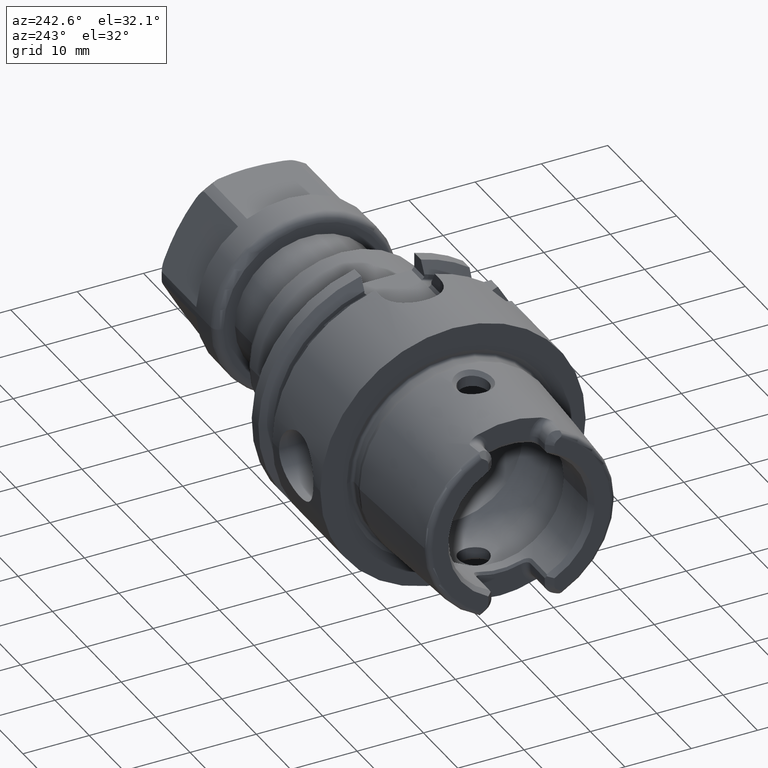
[diagram: clean part render]
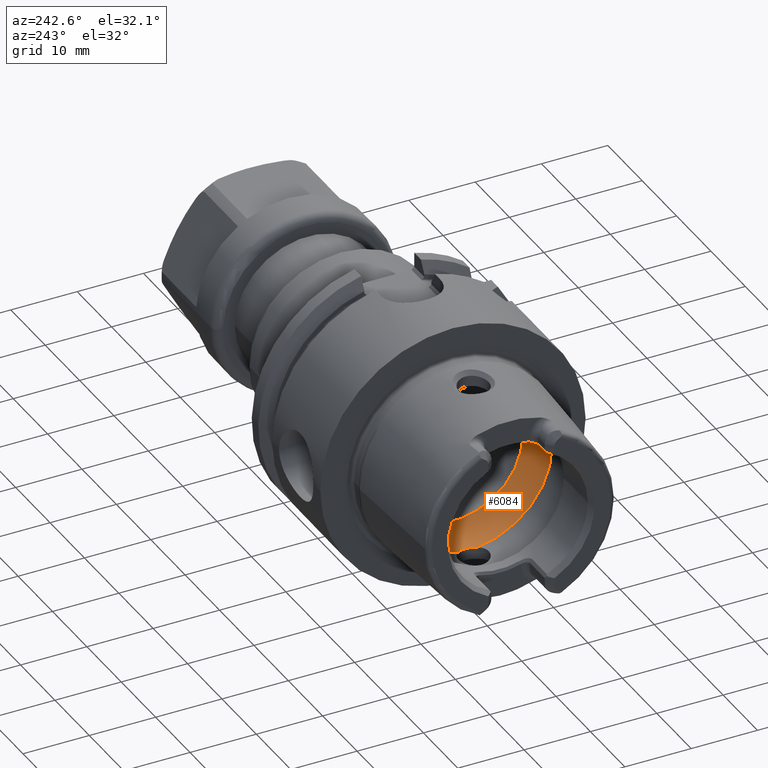
[diagram: same view with one face highlighted and labeled with its STEP entity id]
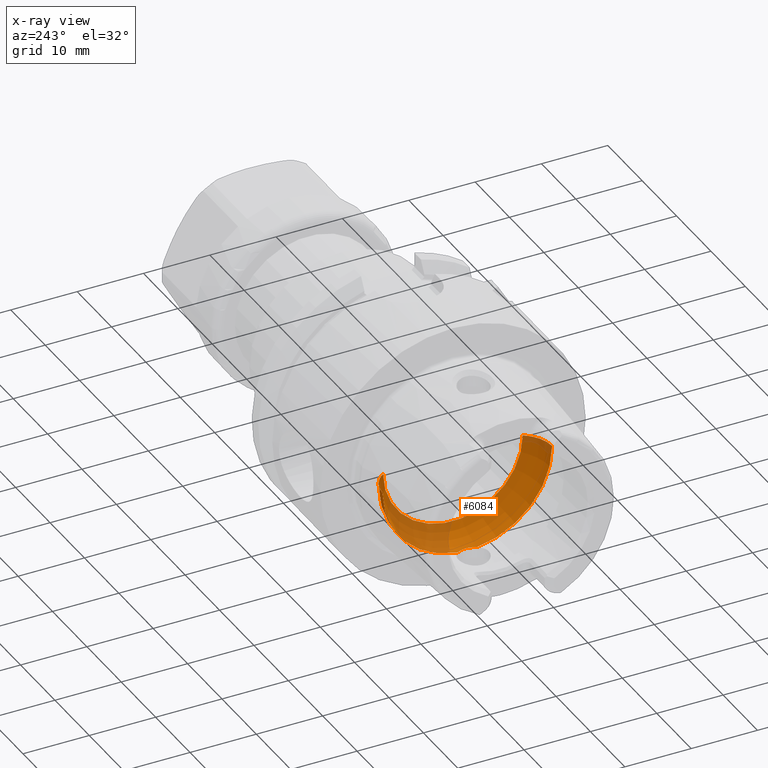
[diagram: x-ray of the same camera — body ghosted, the highlighted face saturated]
A machine part, auxiliary view. The second image highlights one B-rep face of the part: STEP entity #6084.
The next image is the same camera in x-ray: the body ghosted, the highlighted face saturated — about 28% of this face is hidden behind the body in this view.
In plain terms, the highlighted toroidal blend (fillet) surface has major radius 7.7825 mm and minor (blend) radius 5 mm.
Its self-contained STEP definition (entity closure, byte-faithful):
#2299=CARTESIAN_POINT('',(-4.183373967266E0,0.E0,0.E0));
#2300=DIRECTION('',(-1.E0,0.E0,0.E0));
#2301=DIRECTION('',(0.E0,-1.103561485873E-1,-9.938921070564E-1));
#2302=AXIS2_PLACEMENT_3D('',#2299,#2300,#2301);
#2312=CARTESIAN_POINT('',(-4.183373967266E0,0.E0,0.E0));
#2313=DIRECTION('',(-1.E0,0.E0,0.E0));
#2314=DIRECTION('',(0.E0,1.E0,0.E0));
#2315=AXIS2_PLACEMENT_3D('',#2312,#2313,#2314);
#2317=CARTESIAN_POINT('',(-4.183373967266E0,1.410627469318E0,
-1.270442585845E1));
#2318=CARTESIAN_POINT('',(-4.123340228351E0,1.333315170126E0,
-1.271301017813E1));
#2319=CARTESIAN_POINT('',(-4.011233626779E0,1.168828567969E0,
-1.272769945175E1));
#2320=CARTESIAN_POINT('',(-3.871419183696E0,8.897264968603E-1,
-1.274330535283E1));
#2321=CARTESIAN_POINT('',(-3.771256576186E0,5.958381993302E-1,
-1.275296596624E1));
#2322=CARTESIAN_POINT('',(-3.711794717934E0,2.912131748879E-1,
-1.275811647836E1));
#2323=CARTESIAN_POINT('',(-3.7E0,9.581216354732E-2,-1.275908011166E1));
#2324=CARTESIAN_POINT('',(-3.7E0,0.E0,-1.275908011166E1));
#2326=CARTESIAN_POINT('',(-4.183373967266E0,7.7825E0,0.E0));
#2327=DIRECTION('',(0.E0,0.E0,1.E0));
#2328=DIRECTION('',(8.366747934532E-1,5.477E-1,0.E0));
#2329=AXIS2_PLACEMENT_3D('',#2326,#2327,#2328);
#2331=CARTESIAN_POINT('',(0.E0,0.E0,0.E0));
#2332=DIRECTION('',(-1.E0,0.E0,0.E0));
#2333=DIRECTION('',(0.E0,1.E0,0.E0));
#2334=AXIS2_PLACEMENT_3D('',#2331,#2332,#2333);
#2336=CARTESIAN_POINT('',(-4.183373967266E0,-7.7825E0,0.E0));
#2337=DIRECTION('',(0.E0,0.E0,-1.E0));
#2338=DIRECTION('',(8.366747934532E-1,-5.477E-1,0.E0));
#2339=AXIS2_PLACEMENT_3D('',#2336,#2337,#2338);
#2341=CARTESIAN_POINT('',(-3.7E0,0.E0,-1.275908011166E1));
#2342=CARTESIAN_POINT('',(-3.7E0,-1.193651577433E-1,-1.275908011166E1));
#2343=CARTESIAN_POINT('',(-3.718312330619E0,-3.638312384164E-1,
-1.275759519499E1));
#2344=CARTESIAN_POINT('',(-3.812037405700E0,-7.453103324477E-1,
-1.274931375244E1));
#2345=CARTESIAN_POINT('',(-3.970887227848E0,-1.105450276124E0,
-1.273270949203E1));
#2346=CARTESIAN_POINT('',(-4.108323455554E0,-1.313976357446E0,
-1.271515745033E1));
#2347=CARTESIAN_POINT('',(-4.183373967266E0,-1.410627469318E0,
-1.270442585845E1));
#3139=CARTESIAN_POINT('',(-3.7E0,0.E0,-1.275908011166E1));
#3140=VERTEX_POINT('',#3139);
#3153=CARTESIAN_POINT('',(0.E0,1.0521E1,0.E0));
#3154=VERTEX_POINT('',#3153);
#3155=CARTESIAN_POINT('',(-4.183373967266E0,1.27825E1,0.E0));
#3156=VERTEX_POINT('',#3155);
#3165=CARTESIAN_POINT('',(0.E0,-1.0521E1,0.E0));
#3166=VERTEX_POINT('',#3165);
#3167=CARTESIAN_POINT('',(-4.183373967266E0,-1.27825E1,0.E0));
#3168=VERTEX_POINT('',#3167);
#3187=VERTEX_POINT('',#2317);
#3188=VERTEX_POINT('',#2347);
#6069=CARTESIAN_POINT('',(-4.183373967266E0,0.E0,0.E0));
#6070=DIRECTION('',(1.E0,0.E0,0.E0));
#6071=DIRECTION('',(0.E0,-1.E0,0.E0));
#6072=AXIS2_PLACEMENT_3D('',#6069,#6070,#6071);
#6073=TOROIDAL_SURFACE('',#6072,7.7825E0,5.E0);
#6074=ORIENTED_EDGE('',*,*,#6007,.F.);
#6075=ORIENTED_EDGE('',*,*,#6064,.F.);
#6076=ORIENTED_EDGE('',*,*,#6026,.F.);
#6078=ORIENTED_EDGE('',*,*,#6077,.T.);
#6079=ORIENTED_EDGE('',*,*,#6022,.T.);
#6080=ORIENTED_EDGE('',*,*,#6058,.F.);
#6081=ORIENTED_EDGE('',*,*,#5795,.F.);
#6082=EDGE_LOOP('',(#6074,#6075,#6076,#6078,#6079,#6080,#6081));
#6083=FACE_OUTER_BOUND('',#6082,.F.);
#6084=ADVANCED_FACE('',(#6083),#6073,.F.);
#2303=CIRCLE('',#2302,1.27825E1);
#2316=CIRCLE('',#2315,1.27825E1);
#2325=B_SPLINE_CURVE_WITH_KNOTS('',3,(#2317,#2318,#2319,#2320,#2321,#2322,#2323,
#2324),.UNSPECIFIED.,.F.,.F.,(4,1,1,1,1,4),(0.E0,2.E-1,4.E-1,6.E-1,8.E-1,1.E0),
.UNSPECIFIED.);
#2330=CIRCLE('',#2329,5.E0);
#2335=CIRCLE('',#2334,1.0521E1);
#2340=CIRCLE('',#2339,5.E0);
#2348=B_SPLINE_CURVE_WITH_KNOTS('',3,(#2341,#2342,#2343,#2344,#2345,#2346,
#2347),.UNSPECIFIED.,.F.,.F.,(4,1,1,1,4),(0.E0,2.5E-1,5.E-1,7.5E-1,1.E0),
.UNSPECIFIED.);
#5795=EDGE_CURVE('',#3140,#3188,#2348,.T.);
#6007=EDGE_CURVE('',#3187,#3140,#2325,.T.);
#6022=EDGE_CURVE('',#3166,#3168,#2340,.T.);
#6026=EDGE_CURVE('',#3154,#3156,#2330,.T.);
#6058=EDGE_CURVE('',#3188,#3168,#2303,.T.);
#6064=EDGE_CURVE('',#3156,#3187,#2316,.T.);
#6077=EDGE_CURVE('',#3154,#3166,#2335,.T.);